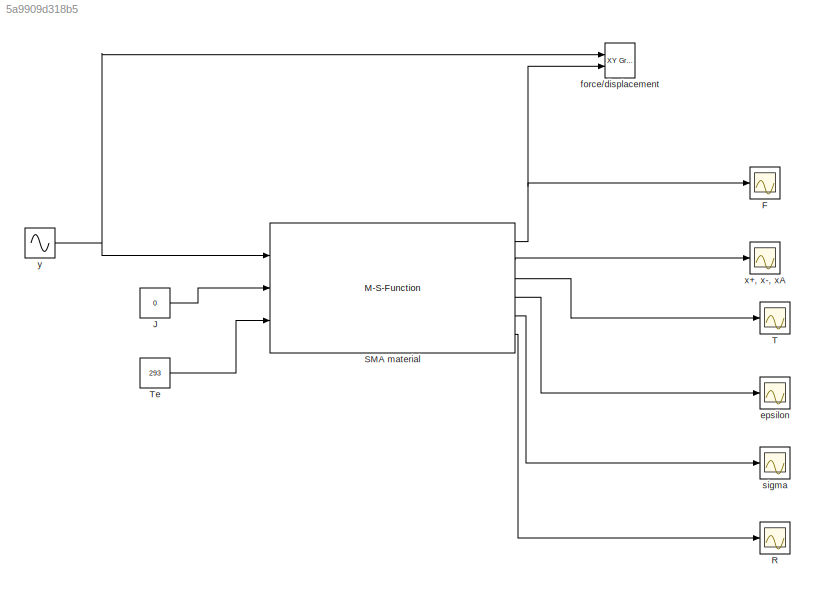
MODEL slx_5a9909d318b5
KIND model
CONFIG AbsTol = 1e-6
CONFIG FixedStep = auto
CONFIG InitFcn = Parameter;
CONFIG MaxStep = auto
CONFIG MinStep = auto
CONFIG RelTol = 1e-6
CONFIG SampleTimeConstraint = Unconstrained
CONFIG Solver = ode15s
CONFIG SolverMode = Auto
CONFIG SolverName = ode15s
CONFIG StartTime = 0.0
CONFIG StopTime = 100
BLOCK [Scope] F
  Ports = [1]
  ScopeSpecificationString = C++SS(StrPVP('Open','off'),StrPVP('TimeRange','auto'),StrPVP('TickLabels','OneTimeTick'),StrPVP('ShowLegends','off'),StrPVP('LimitDataPoints','off'),StrPVP('MaxDataPoints','5000'),StrPVP('SaveToWorkspace','off'),StrPVP('SaveName','ScopeData'),StrPVP('YMin','-10'),StrPVP('YMax','10'),StrPVP('BlockParamSampleInput','off'),StrPVP('BlockParamSampleTime','-1'),StrPVP('ZoomMode','on'),StrPVP('Grid','on'...<+568ch>
BLOCK [Constant] J
  Value = 0
BLOCK [Scope] R
  Ports = [1]
  ScopeSpecificationString = C++SS(StrPVP('Open','off'),StrPVP('TimeRange','auto'),StrPVP('TickLabels','OneTimeTick'),StrPVP('ShowLegends','off'),StrPVP('LimitDataPoints','off'),StrPVP('MaxDataPoints','5000'),StrPVP('SaveToWorkspace','off'),StrPVP('SaveName','ScopeData5'),StrPVP('YMin','22'),StrPVP('YMax','29'),StrPVP('BlockParamSampleInput','off'),StrPVP('BlockParamSampleTime','-1'),StrPVP('ZoomMode','on'),StrPVP('Grid','on'...<+569ch>
BLOCK [M-S-Function] SMA material
  FunctionName = sSMA_displacementIn
  Parameters = params, initConds
  Ports = [3, 6]
BLOCK [Scope] T
  Ports = [1]
  ScopeSpecificationString = C++SS(StrPVP('Open','off'),StrPVP('TimeRange','auto'),StrPVP('TickLabels','OneTimeTick'),StrPVP('ShowLegends','off'),StrPVP('LimitDataPoints','off'),StrPVP('MaxDataPoints','5000'),StrPVP('SaveToWorkspace','off'),StrPVP('SaveName','ScopeData2'),StrPVP('YMin','260'),StrPVP('YMax','320'),StrPVP('BlockParamSampleInput','off'),StrPVP('BlockParamSampleTime','-1'),StrPVP('ZoomMode','on'),StrPVP('Grid','o...<+571ch>
BLOCK [Constant] Te
  Value = 293
BLOCK [Scope] epsilon
  Ports = [1]
  ScopeSpecificationString = C++SS(StrPVP('Open','off'),StrPVP('TimeRange','auto'),StrPVP('TickLabels','OneTimeTick'),StrPVP('ShowLegends','off'),StrPVP('LimitDataPoints','off'),StrPVP('MaxDataPoints','5000'),StrPVP('SaveToWorkspace','off'),StrPVP('SaveName','ScopeData3'),StrPVP('YMin','1706.2'),StrPVP('YMax','1707.8'),StrPVP('BlockParamSampleInput','off'),StrPVP('BlockParamSampleTime','-1'),StrPVP('ZoomMode','on'),StrPVP('Gr...<+577ch>
BLOCK [Reference] force//displacement  REF=simulink/Sinks/XY Graph
  Ports = [2]
  SourceBlock = simulink/Sinks/XY Graph
  SourceType = XY scope.
BLOCK [Scope] sigma
  Ports = [1]
  ScopeSpecificationString = C++SS(StrPVP('Open','off'),StrPVP('TimeRange','auto'),StrPVP('TickLabels','OneTimeTick'),StrPVP('ShowLegends','off'),StrPVP('LimitDataPoints','off'),StrPVP('MaxDataPoints','5000'),StrPVP('SaveToWorkspace','off'),StrPVP('SaveName','ScopeData4'),StrPVP('YMin','1706.2'),StrPVP('YMax','1707.8'),StrPVP('BlockParamSampleInput','off'),StrPVP('BlockParamSampleTime','-1'),StrPVP('ZoomMode','on'),StrPVP('Gr...<+577ch>
BLOCK [Scope] x+, x-, xA
  Ports = [1]
  ScopeSpecificationString = C++SS(StrPVP('Open','off'),StrPVP('TimeRange','auto'),StrPVP('TickLabels','OneTimeTick'),StrPVP('ShowLegends','off'),StrPVP('LimitDataPoints','off'),StrPVP('MaxDataPoints','5000'),StrPVP('SaveToWorkspace','off'),StrPVP('SaveName','ScopeData1'),StrPVP('YMin','-10'),StrPVP('YMax','10'),StrPVP('BlockParamSampleInput','off'),StrPVP('BlockParamSampleTime','-1'),StrPVP('ZoomMode','on'),StrPVP('Grid','on...<+569ch>
BLOCK [Sin] y
  Amplitude = 0.035*params.L0
  Bias = params.L0*1.035
  Frequency = 2*pi/100
  Phase = -pi/2
  Ports = [0, 1]
  SampleTime = 0
LINE J:1 -> SMA material:2
NET SMA material:1 -> F:1, force//displacement:2
LINE SMA material:2 -> x+, x-, xA:1
LINE SMA material:3 -> T:1
LINE SMA material:4 -> epsilon:1
LINE SMA material:5 -> sigma:1
LINE SMA material:6 -> R:1
LINE Te:1 -> SMA material:3
NET y:1 -> SMA material:1, force//displacement:1
note: NET lines group one-source signal fan-out (src -> all destinations, sorted); 1:1 wires keep LINE
